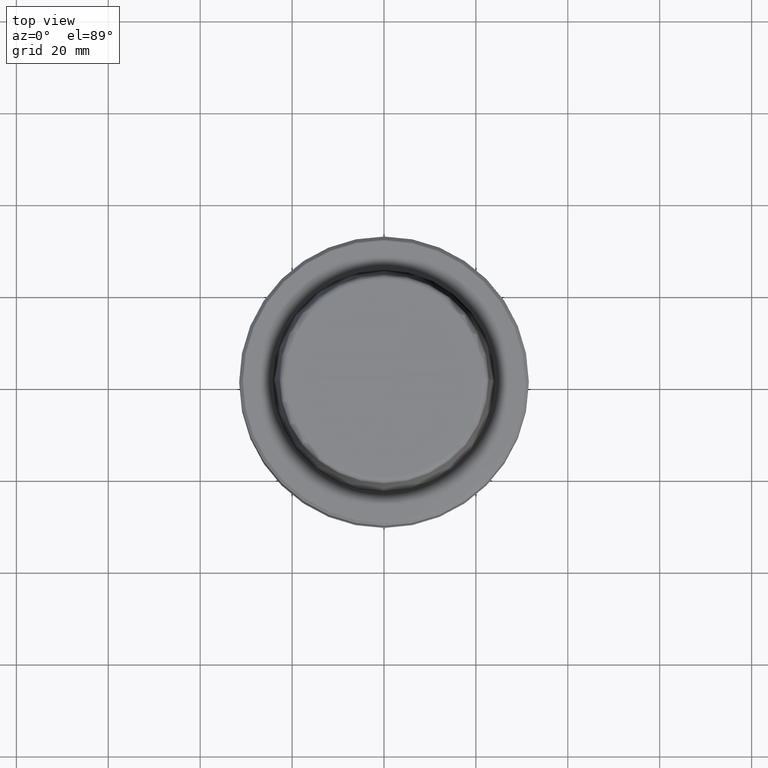
[diagram: clean part render]
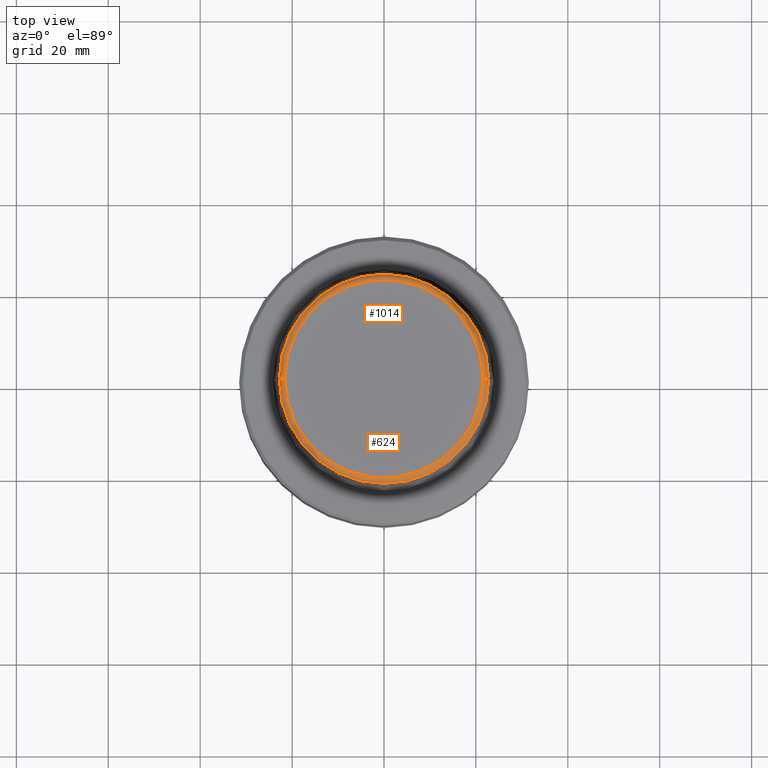
[diagram: same view with one multi-face feature highlighted, each face labeled with its STEP entity id]
A machine part, top view. The highlighted faces form ONE feature: a constant-radius fillet chain: 2 tangent blend faces with common blend radius 1.2 mm. The faces share edges in the B-rep.
Their STEP definitions:
[1] entity #1014 (Torus):
#36 = AXIS2_PLACEMENT_3D ( 'NONE', #874, #810, #354 ) ;
#92 = CIRCLE ( 'NONE', #1055, 1.200000000000003100 ) ;
#96 = ORIENTED_EDGE ( 'NONE', *, *, #378, .T. ) ;
#131 = AXIS2_PLACEMENT_3D ( 'NONE', #236, #1163, #913 ) ;
#190 = CIRCLE ( 'NONE', #36, 21.58108272732117100 ) ;
#200 = VERTEX_POINT ( 'NONE', #442 ) ;
#236 = CARTESIAN_POINT ( 'NONE',  ( 0.0000000000000000000, 0.0000000000000000000, 30.69999999999999200 ) ) ;
#244 = TOROIDAL_SURFACE ( 'NONE', #131, 21.58108272732117100, 1.200000000000003100 ) ;
#252 = EDGE_CURVE ( 'NONE', #200, #714, #190, .T. ) ;
#266 = CIRCLE ( 'NONE', #707, 22.77957961851797100 ) ;
#346 = ORIENTED_EDGE ( 'NONE', *, *, #708, .T. ) ;
#354 = DIRECTION ( 'NONE',  ( 1.000000000000000000, 0.0000000000000000000, 0.0000000000000000000 ) ) ;
#378 = EDGE_CURVE ( 'NONE', #699, #714, #528, .T. ) ;
#442 = CARTESIAN_POINT ( 'NONE',  ( 21.58108272732117100, 0.0000000000000000000, 31.89999999999999900 ) ) ;
#495 = FACE_OUTER_BOUND ( 'NONE', #839, .T. ) ;
#503 = VERTEX_POINT ( 'NONE', #1102 ) ;
#504 = DIRECTION ( 'NONE',  ( 1.224646799147353200E-016, 1.000000000000000000, 0.0000000000000000000 ) ) ;
#509 = CARTESIAN_POINT ( 'NONE',  ( 0.0000000000000000000, 0.0000000000000000000, 30.76004333261571900 ) ) ;
#525 = EDGE_CURVE ( 'NONE', #503, #200, #92, .T. ) ;
#528 = CIRCLE ( 'NONE', #1148, 1.200000000000003100 ) ;
#626 = DIRECTION ( 'NONE',  ( 0.0000000000000000000, -1.000000000000000000, 0.0000000000000000000 ) ) ;
#641 = ORIENTED_EDGE ( 'NONE', *, *, #525, .F. ) ;
#699 = VERTEX_POINT ( 'NONE', #868 ) ;
#707 = AXIS2_PLACEMENT_3D ( 'NONE', #509, #1097, #816 ) ;
#708 = EDGE_CURVE ( 'NONE', #503, #699, #266, .T. ) ;
#714 = VERTEX_POINT ( 'NONE', #740 ) ;
#736 = CARTESIAN_POINT ( 'NONE',  ( -21.58108272732117100, 2.642920388414810300E-015, 30.69999999999999200 ) ) ;
#740 = CARTESIAN_POINT ( 'NONE',  ( -21.58108272732117100, 2.716307157494421400E-015, 31.89999999999999900 ) ) ;
#760 = DIRECTION ( 'NONE',  ( 0.0000000000000000000, 0.0000000000000000000, -1.000000000000000000 ) ) ;
#810 = DIRECTION ( 'NONE',  ( -0.0000000000000000000, -0.0000000000000000000, 1.000000000000000000 ) ) ;
#816 = DIRECTION ( 'NONE',  ( 1.000000000000000000, 0.0000000000000000000, 0.0000000000000000000 ) ) ;
#830 = ORIENTED_EDGE ( 'NONE', *, *, #252, .F. ) ;
#839 = EDGE_LOOP ( 'NONE', ( #346, #96, #830, #641 ) ) ;
#854 = DIRECTION ( 'NONE',  ( -1.000000000000000000, 1.224646799147353200E-016, 0.0000000000000000000 ) ) ;
#868 = CARTESIAN_POINT ( 'NONE',  ( -22.77957961851797100, 0.0000000000000000000, 30.76004333261571900 ) ) ;
#874 = CARTESIAN_POINT ( 'NONE',  ( 0.0000000000000000000, 0.0000000000000000000, 31.89999999999999900 ) ) ;
#913 = DIRECTION ( 'NONE',  ( 1.000000000000000000, 0.0000000000000000000, 0.0000000000000000000 ) ) ;
#1014 = ADVANCED_FACE ( 'NONE', ( #495 ), #244, .T. ) ;
#1055 = AXIS2_PLACEMENT_3D ( 'NONE', #1128, #626, #760 ) ;
#1097 = DIRECTION ( 'NONE',  ( -0.0000000000000000000, -0.0000000000000000000, 1.000000000000000000 ) ) ;
#1102 = CARTESIAN_POINT ( 'NONE',  ( 22.77957961851797100, 2.874852597157249900E-015, 30.76004333261571900 ) ) ;
#1128 = CARTESIAN_POINT ( 'NONE',  ( 21.58108272732117100, 0.0000000000000000000, 30.69999999999999200 ) ) ;
#1148 = AXIS2_PLACEMENT_3D ( 'NONE', #736, #504, #854 ) ;
#1163 = DIRECTION ( 'NONE',  ( -0.0000000000000000000, -0.0000000000000000000, 1.000000000000000000 ) ) ;
[2] entity #624 (Torus):
#45 = DIRECTION ( 'NONE',  ( -0.0000000000000000000, -0.0000000000000000000, 1.000000000000000000 ) ) ;
#92 = CIRCLE ( 'NONE', #1055, 1.200000000000003100 ) ;
#94 = AXIS2_PLACEMENT_3D ( 'NONE', #861, #330, #1070 ) ;
#117 = DIRECTION ( 'NONE',  ( 1.000000000000000000, 0.0000000000000000000, 0.0000000000000000000 ) ) ;
#139 = CARTESIAN_POINT ( 'NONE',  ( 0.0000000000000000000, 0.0000000000000000000, 30.69999999999999200 ) ) ;
#200 = VERTEX_POINT ( 'NONE', #442 ) ;
#213 = CARTESIAN_POINT ( 'NONE',  ( 0.0000000000000000000, 0.0000000000000000000, 30.76004333261571900 ) ) ;
#219 = ORIENTED_EDGE ( 'NONE', *, *, #398, .F. ) ;
#231 = DIRECTION ( 'NONE',  ( 1.000000000000000000, 0.0000000000000000000, 0.0000000000000000000 ) ) ;
#262 = CIRCLE ( 'NONE', #1113, 22.77957961851797100 ) ;
#330 = DIRECTION ( 'NONE',  ( -0.0000000000000000000, -0.0000000000000000000, 1.000000000000000000 ) ) ;
#378 = EDGE_CURVE ( 'NONE', #699, #714, #528, .T. ) ;
#398 = EDGE_CURVE ( 'NONE', #714, #200, #856, .T. ) ;
#442 = CARTESIAN_POINT ( 'NONE',  ( 21.58108272732117100, 0.0000000000000000000, 31.89999999999999900 ) ) ;
#503 = VERTEX_POINT ( 'NONE', #1102 ) ;
#504 = DIRECTION ( 'NONE',  ( 1.224646799147353200E-016, 1.000000000000000000, 0.0000000000000000000 ) ) ;
#525 = EDGE_CURVE ( 'NONE', #503, #200, #92, .T. ) ;
#528 = CIRCLE ( 'NONE', #1148, 1.200000000000003100 ) ;
#533 = ORIENTED_EDGE ( 'NONE', *, *, #525, .T. ) ;
#624 = ADVANCED_FACE ( 'NONE', ( #834 ), #792, .T. ) ;
#626 = DIRECTION ( 'NONE',  ( 0.0000000000000000000, -1.000000000000000000, 0.0000000000000000000 ) ) ;
#684 = ORIENTED_EDGE ( 'NONE', *, *, #378, .F. ) ;
#699 = VERTEX_POINT ( 'NONE', #868 ) ;
#713 = EDGE_LOOP ( 'NONE', ( #684, #920, #533, #219 ) ) ;
#714 = VERTEX_POINT ( 'NONE', #740 ) ;
#736 = CARTESIAN_POINT ( 'NONE',  ( -21.58108272732117100, 2.642920388414810300E-015, 30.69999999999999200 ) ) ;
#740 = CARTESIAN_POINT ( 'NONE',  ( -21.58108272732117100, 2.716307157494421400E-015, 31.89999999999999900 ) ) ;
#760 = DIRECTION ( 'NONE',  ( 0.0000000000000000000, 0.0000000000000000000, -1.000000000000000000 ) ) ;
#792 = TOROIDAL_SURFACE ( 'NONE', #1232, 21.58108272732117100, 1.200000000000003100 ) ;
#811 = DIRECTION ( 'NONE',  ( -0.0000000000000000000, -0.0000000000000000000, 1.000000000000000000 ) ) ;
#834 = FACE_OUTER_BOUND ( 'NONE', #713, .T. ) ;
#854 = DIRECTION ( 'NONE',  ( -1.000000000000000000, 1.224646799147353200E-016, 0.0000000000000000000 ) ) ;
#856 = CIRCLE ( 'NONE', #94, 21.58108272732117100 ) ;
#861 = CARTESIAN_POINT ( 'NONE',  ( 0.0000000000000000000, 0.0000000000000000000, 31.89999999999999900 ) ) ;
#868 = CARTESIAN_POINT ( 'NONE',  ( -22.77957961851797100, 0.0000000000000000000, 30.76004333261571900 ) ) ;
#920 = ORIENTED_EDGE ( 'NONE', *, *, #1152, .T. ) ;
#1055 = AXIS2_PLACEMENT_3D ( 'NONE', #1128, #626, #760 ) ;
#1070 = DIRECTION ( 'NONE',  ( 1.000000000000000000, 0.0000000000000000000, 0.0000000000000000000 ) ) ;
#1102 = CARTESIAN_POINT ( 'NONE',  ( 22.77957961851797100, 2.874852597157249900E-015, 30.76004333261571900 ) ) ;
#1113 = AXIS2_PLACEMENT_3D ( 'NONE', #213, #811, #117 ) ;
#1128 = CARTESIAN_POINT ( 'NONE',  ( 21.58108272732117100, 0.0000000000000000000, 30.69999999999999200 ) ) ;
#1148 = AXIS2_PLACEMENT_3D ( 'NONE', #736, #504, #854 ) ;
#1152 = EDGE_CURVE ( 'NONE', #699, #503, #262, .T. ) ;
#1232 = AXIS2_PLACEMENT_3D ( 'NONE', #139, #45, #231 ) ;